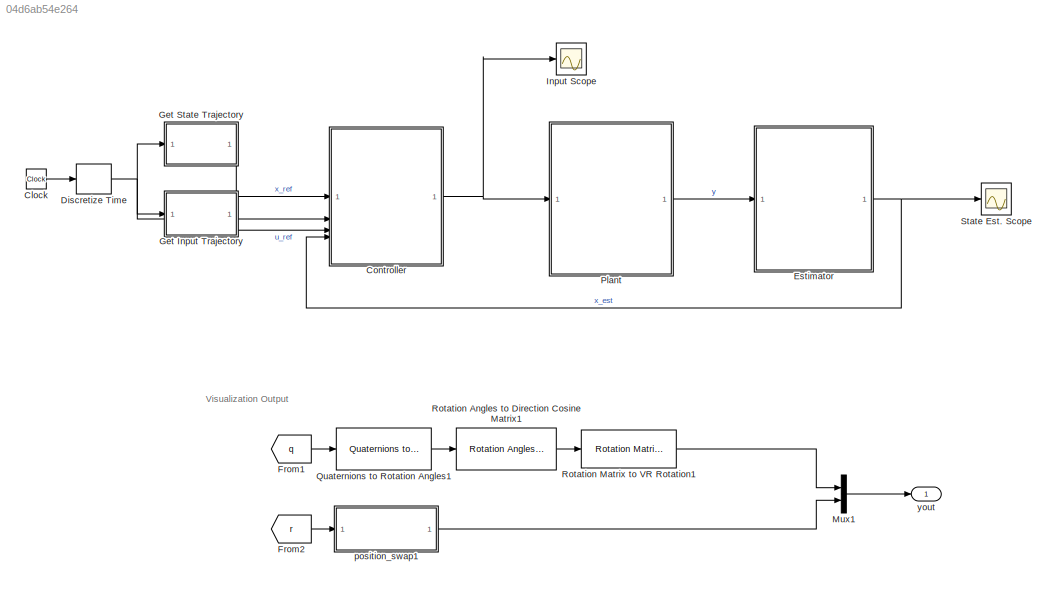
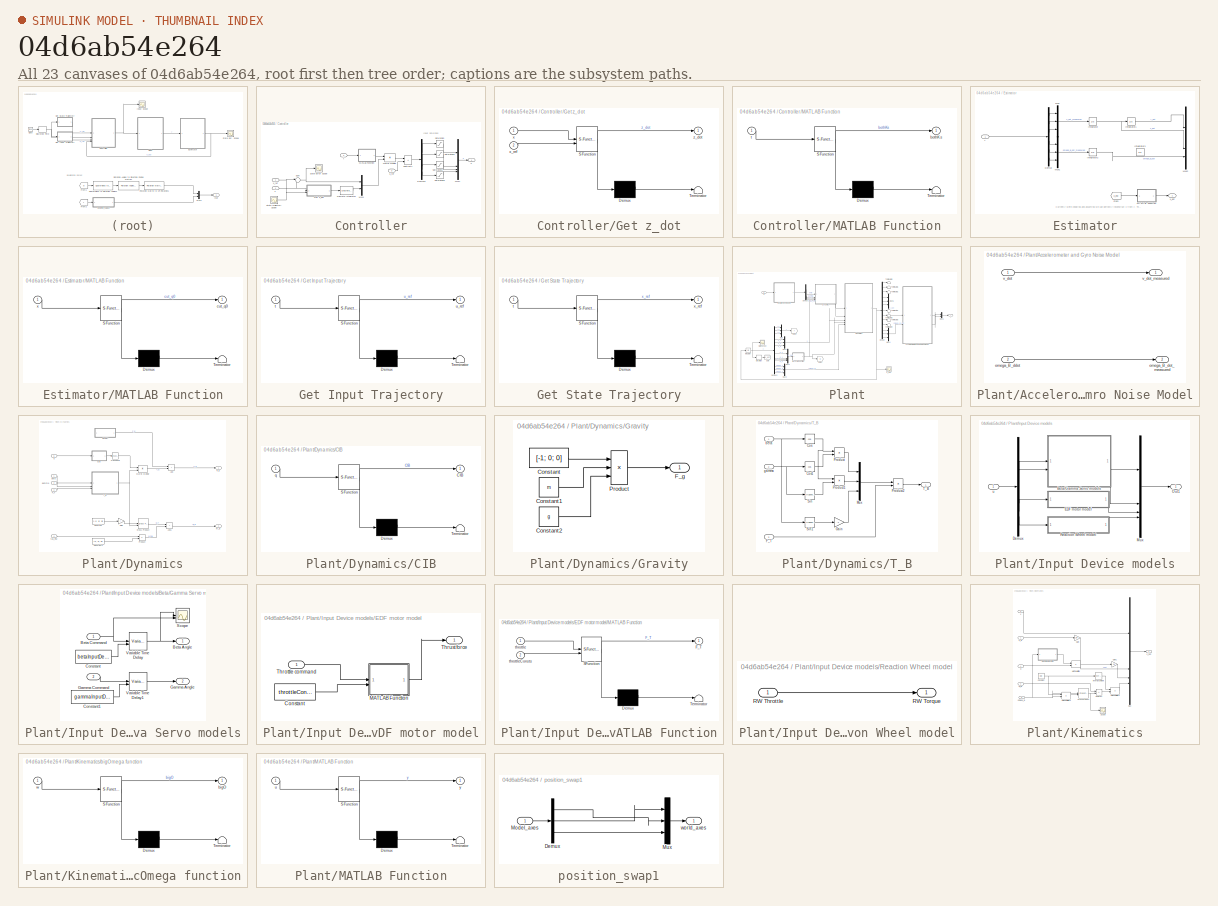
[diagram: thumbnail index - all 23 canvases of the model, root first then tree order]
MODEL slx_04d6ab54e264
KIND model
CONFIG AbsTol = 1e-9
CONFIG EnableMultiTasking = on
CONFIG FixedStep = 1e-4
CONFIG MaxStep = auto
CONFIG MinStep = auto
CONFIG RelTol = 1e-9
CONFIG SampleTimeConstraint = Unconstrained
CONFIG SolverName = VariableStepAuto
CONFIG StartTime = startTime
CONFIG StopTime = stopTime
WORKSPACE source: mxarray member
WORKSPACE Kset = [-2.00916512617e-14 -2.1396164685e-13 1645.65145003 1.10700309911e-13 0.064606154931 -1.15620600709 -2.35613942722e-12 1.21905689036 1.1835423475 0.0960813361903 -1.05646659933e-12 0.256355277786 ... (180 elements, 4x15x3)]
WORKSPACE MOI = [0.25 0.023 -0.0888 0.023 0.5 0.097345 -0.0888 0.097345 0.5]
WORKSPACE betaInputDelay = 0.001
WORKSPACE discretize_interval = 0.0025
WORKSPACE g = 9.81
WORKSPACE gammaInputDelay = 0.001
WORKSPACE inputLimits = [-0.261799387799 -0.261799387799 0 -0.1 0.261799387799 0.261799387799 100 0.1]
WORKSPACE l = 0.5
WORKSPACE m = 5
WORKSPACE q1 = [0.506236006596 0.0473671727454 0.176776695297]
WORKSPACE startTime = 0
WORKSPACE stopTime = 15
WORKSPACE tSegs = [0 7.5 15]
WORKSPACE t_set = [0 0.000750075007501 0.001500150015 0.0022502250225 0.00300030003 0.0037503750375 0.004500450045 0.00525052505251 0.00600060006001 0.00675067506751 0.00750075007501 0.00825082508251 ... (19999 elements, 1x19999)]
WORKSPACE throttleConsts = [71.0072 0.0504 67.9056]
WORKSPACE u_set = [-0.261799387799 0.261799387799 0 -0.1 -0.261799387799 0.261799387799 0 -0.1 -0.261799387799 0.261799387799 0 -0.1 ... (79996 elements, 4x19999)]
WORKSPACE x1 = [10 5 5 0 0 0 0.506236006596 0.0473671727454 0.176776695297 0 0 0]
WORKSPACE x_set = [10 5 5 0 0 0 0.506236006596 0.0473671727454 0.176776695297 0 0 0 ... (239988 elements, 12x19999)]
BLOCK [Clock] Clock
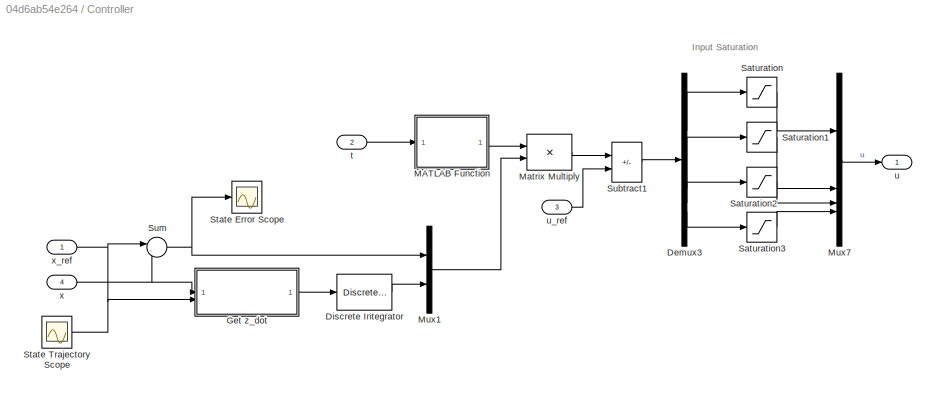
BLOCK [SubSystem] Controller
BLOCK [Demux] Controller/Demux3
BLOCK [DiscreteIntegrator] Controller/Discrete Integrator
  ICPrevOutput = DiscIntNeverNeededParam
  ICPrevScaledInput = DiscIntNeverNeededParam
  InitialConditionSetting = Auto
  IntegratorMethod = Integration: Trapezoidal
  SampleTime = discretize_interval
BLOCK [SubSystem] Controller/Get z_dot
  ErrorFcn = Stateflow.Translate.translate
  LibrarySourceBlock = simulink/User-Defined\nFunctions/MATLAB Function
  PermitHierarchicalResolution = ExplicitOnly
  SFBlockType = MATLAB Function
  TreatAsAtomicUnit = on
BLOCK [Demux] Controller/Get z_dot/ Demux 
  Outputs = 1
BLOCK [S-Function] Controller/Get z_dot/ SFunction 
  EnableBusSupport = off
  FunctionName = sf_sfun
  PortCounts = [2 2]
  SFcnIsStateOwnerBlock = off
  SFunctionDeploymentMode = off
  Tag = Stateflow S-Function 1
BLOCK [Terminator] Controller/Get z_dot/ Terminator 
BLOCK [Inport] Controller/Get z_dot/x
BLOCK [Inport] Controller/Get z_dot/x_ref
  Port = 2
BLOCK [Outport] Controller/Get z_dot/z_dot
BLOCK [SubSystem] Controller/MATLAB Function
  ErrorFcn = Stateflow.Translate.translate
  LibrarySourceBlock = simulink/User-Defined\nFunctions/MATLAB Function
  PermitHierarchicalResolution = ExplicitOnly
  SFBlockType = MATLAB Function
  TreatAsAtomicUnit = on
BLOCK [Demux] Controller/MATLAB Function/ Demux 
  Outputs = 1
BLOCK [S-Function] Controller/MATLAB Function/ SFunction 
  EnableBusSupport = off
  FunctionName = sf_sfun
  Parameters = Kset,tSegs
  PortCounts = [1 2]
  SFcnIsStateOwnerBlock = off
  SFunctionDeploymentMode = off
  Tag = Stateflow S-Function 3
BLOCK [Terminator] Controller/MATLAB Function/ Terminator 
BLOCK [Outport] Controller/MATLAB Function/bothKs
BLOCK [Inport] Controller/MATLAB Function/t
BLOCK [Product] Controller/Matrix Multiply
  Multiplication = Matrix(*)
BLOCK [Mux] Controller/Mux1
  DisplayOption = bar
  Inputs = 2
BLOCK [Mux] Controller/Mux7
  DisplayOption = bar
BLOCK [Saturate] Controller/Saturation
  LinearizeAsGain = off
  LowerLimit = inputLimits(1, 1)
  UpperLimit = inputLimits(1, 2)
BLOCK [Saturate] Controller/Saturation1
  LinearizeAsGain = off
  LowerLimit = inputLimits(2, 1)
  UpperLimit = inputLimits(2, 2)
BLOCK [Saturate] Controller/Saturation2
  LinearizeAsGain = off
  LowerLimit = inputLimits(3, 1)
  UpperLimit = inputLimits(3, 2)
  ZeroCross = off
BLOCK [Saturate] Controller/Saturation3
  LinearizeAsGain = off
  LowerLimit = inputLimits(4, 1)
  UpperLimit = inputLimits(4, 2)
BLOCK [Scope] Controller/State Error Scope
  Floating = off
  NumInputPorts = 1
  ScopeSpecificationString = Simulink.scopes.TimeScopeBlockCfg('CurrentConfiguration', extmgr.ConfigurationSet(extmgr.Configuration('Core','General UI',true),extmgr.Configuration('Core','Source UI',true),extmgr.Configuration('Sources','WiredSimulink',true,'DataLoggingVariableName','ScopeData3'),extmgr.Configuration('Visuals','Time Domain',true,'SerializedDisplays',{struct('MinYLimReal','-1.51556','MaxYLimReal','1.6096','YLabe...<+1814ch>
BLOCK [Scope] Controller/State Trajectory Scope
  Floating = off
  NumInputPorts = 1
  ScopeSpecificationString = Simulink.scopes.TimeScopeBlockCfg('CurrentConfiguration', extmgr.ConfigurationSet(extmgr.Configuration('Core','General UI',true),extmgr.Configuration('Core','Source UI',true),extmgr.Configuration('Sources','WiredSimulink',true,'DataLoggingVariableName','ScopeData2'),extmgr.Configuration('Visuals','Time Domain',true,'SerializedDisplays',{struct('MinYLimReal','-5.28694','MaxYLimReal','17.2541','YLab...<+1432ch>
BLOCK [Sum] Controller/Subtract1
  IconShape = rectangular
  Inputs = -+
BLOCK [Sum] Controller/Sum
  Inputs = |-+
BLOCK [Inport] Controller/t
  IconDisplay = Signal name
  Port = 2
BLOCK [Outport] Controller/u
BLOCK [Inport] Controller/u_ref
  Port = 3
BLOCK [Inport] Controller/x
  Port = 4
BLOCK [Inport] Controller/x_ref
BLOCK [ZeroOrderHold] Discretize Time 
  SampleTime = discretize_interval
BLOCK [SubSystem] Estimator
BLOCK [Demux] Estimator/Demux
  Commented = on
  Outputs = 6
BLOCK [From] Estimator/From
  GotoTag = x_est
  TagVisibility = global
BLOCK [Integrator] Estimator/Integrator
  Commented = on
  InitialCondition = x1(4:6)
BLOCK [Integrator] Estimator/Integrator1
  Commented = on
  InitialCondition = x1(1:3)
BLOCK [Integrator] Estimator/Integrator2
  Commented = on
  InitialCondition = x1(4:6)
BLOCK [Integrator] Estimator/Integrator3
  Commented = on
  InitialCondition = x1(1:3)
BLOCK [SubSystem] Estimator/MATLAB Function
  ErrorFcn = Stateflow.Translate.translate
  PermitHierarchicalResolution = ExplicitOnly
  SFBlockType = MATLAB Function
  TreatAsAtomicUnit = on
BLOCK [Demux] Estimator/MATLAB Function/ Demux 
  Outputs = 1
BLOCK [S-Function] Estimator/MATLAB Function/ SFunction 
  EnableBusSupport = off
  FunctionName = sf_sfun
  PortCounts = [1 2]
  SFcnIsStateOwnerBlock = off
  SFunctionDeploymentMode = off
  Tag = Stateflow S-Function 5
BLOCK [Terminator] Estimator/MATLAB Function/ Terminator 
BLOCK [Outport] Estimator/MATLAB Function/cut_q0
BLOCK [Inport] Estimator/MATLAB Function/x
BLOCK [Mux] Estimator/Mux
  Commented = on
  DisplayOption = bar
  Inputs = 3
BLOCK [Mux] Estimator/Mux1
  Commented = on
  DisplayOption = bar
  Inputs = 3
BLOCK [Mux] Estimator/Mux2
  Commented = on
  DisplayOption = bar
BLOCK [Outport] Estimator/x_est
BLOCK [Inport] Estimator/y
BLOCK [From] From1
  GotoTag = q
  TagVisibility = global
BLOCK [From] From2
  GotoTag = r
  TagVisibility = global
BLOCK [SubSystem] Get Input Trajectory
  ErrorFcn = Stateflow.Translate.translate
  LibrarySourceBlock = simulink/User-Defined\nFunctions/MATLAB Function
  PermitHierarchicalResolution = ExplicitOnly
  SFBlockType = MATLAB Function
  TreatAsAtomicUnit = on
BLOCK [Demux] Get Input Trajectory/ Demux 
  Outputs = 1
BLOCK [S-Function] Get Input Trajectory/ SFunction 
  EnableBusSupport = off
  FunctionName = sf_sfun
  Parameters = t_set,u_set
  PortCounts = [1 2]
  SFcnIsStateOwnerBlock = off
  SFunctionDeploymentMode = off
  Tag = Stateflow S-Function 6
BLOCK [Terminator] Get Input Trajectory/ Terminator 
BLOCK [Inport] Get Input Trajectory/t
BLOCK [Outport] Get Input Trajectory/u_ref
BLOCK [SubSystem] Get State Trajectory
  ErrorFcn = Stateflow.Translate.translate
  LibrarySourceBlock = simulink/User-Defined\nFunctions/MATLAB Function
  NameLocation = top
  PermitHierarchicalResolution = ExplicitOnly
  SFBlockType = MATLAB Function
  TreatAsAtomicUnit = on
BLOCK [Demux] Get State Trajectory/ Demux 
  Outputs = 1
BLOCK [S-Function] Get State Trajectory/ SFunction 
  EnableBusSupport = off
  FunctionName = sf_sfun
  Parameters = t_set,x_set
  PortCounts = [1 2]
  SFcnIsStateOwnerBlock = off
  SFunctionDeploymentMode = off
  Tag = Stateflow S-Function 2
BLOCK [Terminator] Get State Trajectory/ Terminator 
BLOCK [Inport] Get State Trajectory/t
BLOCK [Outport] Get State Trajectory/x_ref
BLOCK [Scope] Input Scope
  Floating = off
  NumInputPorts = 1
  ScopeSpecificationString = Simulink.scopes.TimeScopeBlockCfg('CurrentConfiguration', extmgr.ConfigurationSet(extmgr.Configuration('Core','General UI',true),extmgr.Configuration('Core','Source UI',true),extmgr.Configuration('Sources','WiredSimulink',true,'DataLoggingVariableName','ScopeData1'),extmgr.Configuration('Visuals','Time Domain',true,'SerializedDisplays',{struct('MinYLimReal','-12.79452','MaxYLimReal','112.53272','Y...<+1646ch>
BLOCK [Mux] Mux1
  DisplayOption = bar
  Inputs = 2
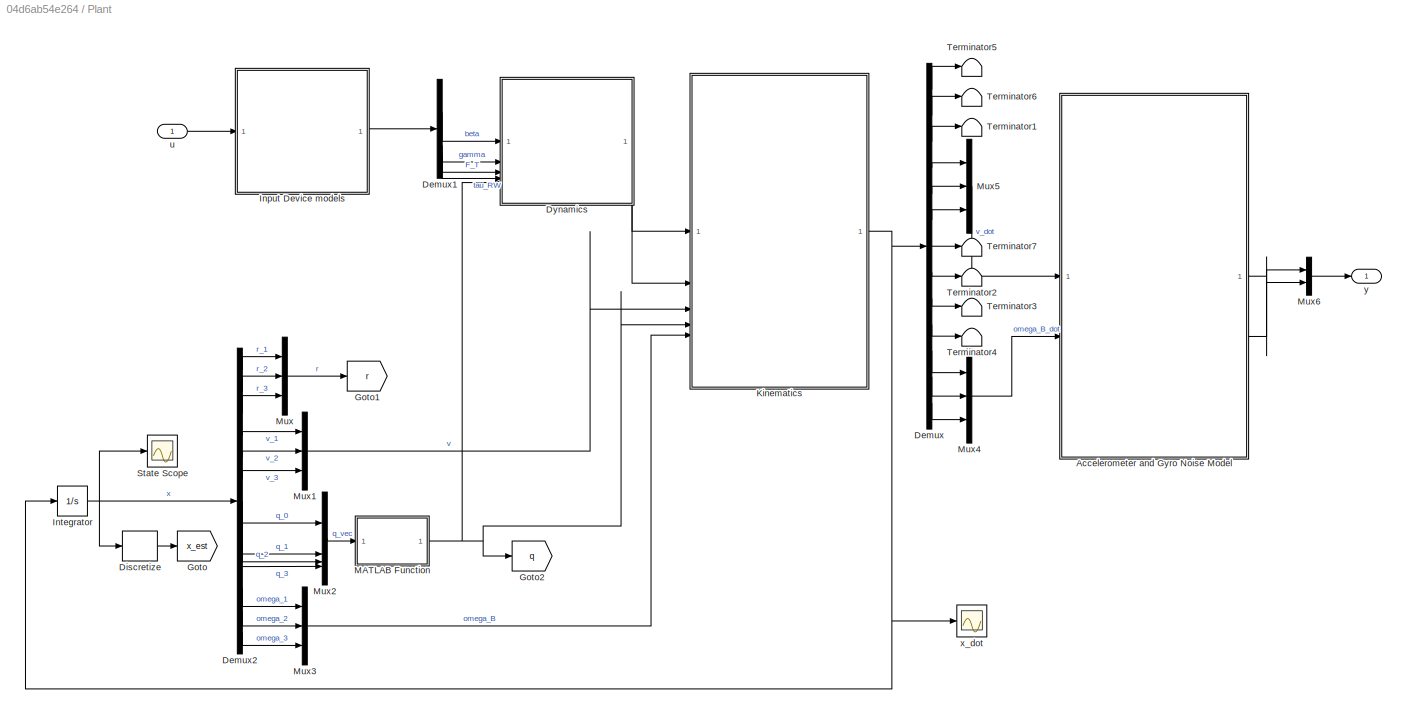
BLOCK [SubSystem] Plant
BLOCK [SubSystem] Plant/Accelerometer and Gyro Noise Model
BLOCK [Inport] Plant/Accelerometer and Gyro Noise Model/omega_B_ddot
  Port = 2
BLOCK [Outport] Plant/Accelerometer and Gyro Noise Model/omega_B_dot_measured
  Port = 2
BLOCK [Inport] Plant/Accelerometer and Gyro Noise Model/v_dot
BLOCK [Outport] Plant/Accelerometer and Gyro Noise Model/v_dot_measured
BLOCK [Demux] Plant/Demux
  Outputs = 13
BLOCK [Demux] Plant/Demux1
BLOCK [Demux] Plant/Demux2
  Outputs = 13
BLOCK [ZeroOrderHold] Plant/Discretize
  SampleTime = -1
BLOCK [SubSystem] Plant/Dynamics
BLOCK [Sum] Plant/Dynamics/Add
  IconShape = rectangular
BLOCK [Sum] Plant/Dynamics/Add1
  IconShape = rectangular
BLOCK [SubSystem] Plant/Dynamics/CIB
  ErrorFcn = Stateflow.Translate.translate
  LibrarySourceBlock = simulink/User-Defined\nFunctions/MATLAB Function
  PermitHierarchicalResolution = ExplicitOnly
  SFBlockType = MATLAB Function
  TreatAsAtomicUnit = on
BLOCK [Demux] Plant/Dynamics/CIB/ Demux 
  Outputs = 1
BLOCK [S-Function] Plant/Dynamics/CIB/ SFunction 
  EnableBusSupport = off
  FunctionName = sf_sfun
  PortCounts = [1 2]
  SFcnIsStateOwnerBlock = off
  SFunctionDeploymentMode = off
  Tag = Stateflow S-Function 7
BLOCK [Terminator] Plant/Dynamics/CIB/ Terminator 
BLOCK [Outport] Plant/Dynamics/CIB/CIB
BLOCK [Inport] Plant/Dynamics/CIB/q
BLOCK [Constant] Plant/Dynamics/Constant
  Value = [-1; 0; 0]
BLOCK [Constant] Plant/Dynamics/Constant1
  Value = [1; 0; 0]
BLOCK [Reference] Plant/Dynamics/Cross Product  REF=matrix_library/Cross Product
  LibrarySourceBlock = simulink/Matrix\nOperations/Cross Product
  SourceBlock = matrix_library/Cross Product
  SourceType = CrossProduct
BLOCK [Outport] Plant/Dynamics/F_E
BLOCK [Inport] Plant/Dynamics/F_T
  Port = 3
BLOCK [Gain] Plant/Dynamics/Gain
  Gain = l
BLOCK [SubSystem] Plant/Dynamics/Gravity
BLOCK [Constant] Plant/Dynamics/Gravity/Constant
  Value = [-1; 0; 0]
BLOCK [Constant] Plant/Dynamics/Gravity/Constant1
  Value = m
BLOCK [Constant] Plant/Dynamics/Gravity/Constant2
  Value = g
BLOCK [Outport] Plant/Dynamics/Gravity/F_g
BLOCK [Product] Plant/Dynamics/Gravity/Product
  Inputs = 3
BLOCK [Outport] Plant/Dynamics/M_B
  Port = 2
BLOCK [Product] Plant/Dynamics/Matrix Multiply
  Multiplication = Matrix(*)
BLOCK [Product] Plant/Dynamics/Product
BLOCK [SubSystem] Plant/Dynamics/T_B
BLOCK [Trigonometry] Plant/Dynamics/T_B/Cos
  Operator = cos
BLOCK [Trigonometry] Plant/Dynamics/T_B/Cos1
  Operator = cos
BLOCK [Inport] Plant/Dynamics/T_B/F_T
  Port = 3
BLOCK [Gain] Plant/Dynamics/T_B/Gain
  Gain = -1
BLOCK [Mux] Plant/Dynamics/T_B/Mux
  DisplayOption = bar
  Inputs = 3
BLOCK [Product] Plant/Dynamics/T_B/Product
BLOCK [Product] Plant/Dynamics/T_B/Product1
BLOCK [Product] Plant/Dynamics/T_B/Product2
BLOCK [Trigonometry] Plant/Dynamics/T_B/Sin
BLOCK [Trigonometry] Plant/Dynamics/T_B/Sin1
BLOCK [Outport] Plant/Dynamics/T_B/T_B
BLOCK [Inport] Plant/Dynamics/T_B/beta
BLOCK [Inport] Plant/Dynamics/T_B/gamma
  Port = 2
BLOCK [Math] Plant/Dynamics/Transpose
  Operator = transpose
BLOCK [Inport] Plant/Dynamics/beta
BLOCK [Inport] Plant/Dynamics/gamma
  Port = 2
BLOCK [Inport] Plant/Dynamics/q
  Port = 5
BLOCK [Inport] Plant/Dynamics/tau_RW
  Port = 4
BLOCK [Goto] Plant/Goto
  GotoTag = x_est
  TagVisibility = global
BLOCK [Goto] Plant/Goto1
  GotoTag = r
  TagVisibility = global
BLOCK [Goto] Plant/Goto2
  GotoTag = q
  TagVisibility = global
BLOCK [SubSystem] Plant/Input Device models
BLOCK [SubSystem] Plant/Input Device models/Beta//Gamma Servo models
  Commented = through
BLOCK [Outport] Plant/Input Device models/Beta//Gamma Servo models/Beta Angle
BLOCK [Inport] Plant/Input Device models/Beta//Gamma Servo models/Beta Command
BLOCK [Constant] Plant/Input Device models/Beta//Gamma Servo models/Constant
  Value = betaInputDelay
BLOCK [Constant] Plant/Input Device models/Beta//Gamma Servo models/Constant1
  Value = gammaInputDelay
BLOCK [Outport] Plant/Input Device models/Beta//Gamma Servo models/Gamma Angle
  Port = 2
BLOCK [Inport] Plant/Input Device models/Beta//Gamma Servo models/Gamma Command
  Port = 2
BLOCK [Scope] Plant/Input Device models/Beta//Gamma Servo models/Scope
  Floating = off
  NumInputPorts = 2
  ScopeSpecificationString = Simulink.scopes.TimeScopeBlockCfg('CurrentConfiguration', extmgr.ConfigurationSet(extmgr.Configuration('Core','General UI',true),extmgr.Configuration('Core','Source UI',true),extmgr.Configuration('Sources','WiredSimulink',true,'DataLoggingVariableName','ScopeData4'),extmgr.Configuration('Visuals','Time Domain',true,'SerializedDisplays',{struct('MinYLimReal','-0.07593','MaxYLimReal','0.22168','YLab...<+1413ch>
BLOCK [VariableTransportDelay] Plant/Input Device models/Beta//Gamma Servo models/Variable Time Delay
  MaximumDelay = 10
BLOCK [VariableTransportDelay] Plant/Input Device models/Beta//Gamma Servo models/Variable Time Delay1
  MaximumDelay = 10
BLOCK [Demux] Plant/Input Device models/Demux
BLOCK [SubSystem] Plant/Input Device models/EDF motor model
BLOCK [Constant] Plant/Input Device models/EDF motor model/Constant
  Value = throttleConsts
BLOCK [SubSystem] Plant/Input Device models/EDF motor model/MATLAB Function
  ErrorFcn = Stateflow.Translate.translate
  LibrarySourceBlock = simulink/User-Defined\nFunctions/MATLAB Function
  PermitHierarchicalResolution = ExplicitOnly
  SFBlockType = MATLAB Function
  TreatAsAtomicUnit = on
BLOCK [Demux] Plant/Input Device models/EDF motor model/MATLAB Function/ Demux 
  Outputs = 1
BLOCK [S-Function] Plant/Input Device models/EDF motor model/MATLAB Function/ SFunction 
  EnableBusSupport = off
  FunctionName = sf_sfun
  PortCounts = [2 2]
  SFcnIsStateOwnerBlock = off
  SFunctionDeploymentMode = off
  Tag = Stateflow S-Function 4
BLOCK [Terminator] Plant/Input Device models/EDF motor model/MATLAB Function/ Terminator 
BLOCK [Outport] Plant/Input Device models/EDF motor model/MATLAB Function/F_T
BLOCK [Inport] Plant/Input Device models/EDF motor model/MATLAB Function/throttle
BLOCK [Inport] Plant/Input Device models/EDF motor model/MATLAB Function/throttleConsts
  Port = 2
BLOCK [Inport] Plant/Input Device models/EDF motor model/Throttle command
BLOCK [Outport] Plant/Input Device models/EDF motor model/Thrust force
BLOCK [Mux] Plant/Input Device models/Mux
  DisplayOption = bar
BLOCK [Outport] Plant/Input Device models/Out1
BLOCK [SubSystem] Plant/Input Device models/Reaction Wheel model
  Commented = through
BLOCK [Inport] Plant/Input Device models/Reaction Wheel model/RW Throttle
BLOCK [Outport] Plant/Input Device models/Reaction Wheel model/RW Torque
BLOCK [Inport] Plant/Input Device models/u
BLOCK [Integrator] Plant/Integrator
  InitialCondition = [x1(1:6); sqrt(1-q1(1)^2-q1(2)^2-q1(3)^2); x1(7:end)]
BLOCK [SubSystem] Plant/Kinematics
BLOCK [Constant] Plant/Kinematics/Constant
  Value = MOI
BLOCK [Reference] Plant/Kinematics/Cross Product  REF=matrix_library/Cross Product
  LibrarySourceBlock = simulink/Matrix\nOperations/Cross Product
  SourceBlock = matrix_library/Cross Product
  SourceType = CrossProduct
BLOCK [Inport] Plant/Kinematics/F_E
BLOCK [Gain] Plant/Kinematics/Gain
  Gain = 1/m
BLOCK [Gain] Plant/Kinematics/Gain1
  Gain = 0.5
BLOCK [Reference] Plant/Kinematics/Invert 3x3 Matrix  REF=aerolibutil/Invert 
3x3 Matrix
  SourceBlock = aerolibutil/Invert \n3x3 Matrix
  SourceType = Invert 3x3 Matrix
BLOCK [Inport] Plant/Kinematics/M_B
  Port = 2
BLOCK [Product] Plant/Kinematics/Matrix Multiply
  Multiplication = Matrix(*)
BLOCK [Product] Plant/Kinematics/Matrix Multiply1
  Multiplication = Matrix(*)
BLOCK [Product] Plant/Kinematics/Matrix Multiply2
  Multiplication = Matrix(*)
BLOCK [Mux] Plant/Kinematics/Mux
  DisplayOption = bar
BLOCK [Scope] Plant/Kinematics/Scope
  Floating = off
  NumInputPorts = 1
  ScopeSpecificationString = Simulink.scopes.TimeScopeBlockCfg('CurrentConfiguration', extmgr.ConfigurationSet(extmgr.Configuration('Core','General UI',true),extmgr.Configuration('Core','Source UI',true),extmgr.Configuration('Sources','WiredSimulink',true,'DataLoggingVariableName','ScopeData1'),extmgr.Configuration('Visuals','Time Domain',true,'SerializedDisplays',{struct('MinYLimReal','-0.69942','MaxYLimReal','0.8203','YLabe...<+1481ch>
BLOCK [Sum] Plant/Kinematics/Subtract
  IconShape = rectangular
  Inputs = +-
BLOCK [SubSystem] Plant/Kinematics/bigOmega function
  ErrorFcn = Stateflow.Translate.translate
  LibrarySourceBlock = simulink/User-Defined\nFunctions/MATLAB Function
  PermitHierarchicalResolution = ExplicitOnly
  SFBlockType = MATLAB Function
  TreatAsAtomicUnit = on
BLOCK [Demux] Plant/Kinematics/bigOmega function/ Demux 
  Outputs = 1
BLOCK [S-Function] Plant/Kinematics/bigOmega function/ SFunction 
  EnableBusSupport = off
  FunctionName = sf_sfun
  PortCounts = [1 2]
  SFcnIsStateOwnerBlock = off
  SFunctionDeploymentMode = off
  Tag = Stateflow S-Function 13
BLOCK [Terminator] Plant/Kinematics/bigOmega function/ Terminator 
BLOCK [Outport] Plant/Kinematics/bigOmega function/bigO
BLOCK [Inport] Plant/Kinematics/bigOmega function/w
BLOCK [Inport] Plant/Kinematics/omega_B
  Port = 5
BLOCK [Inport] Plant/Kinematics/q
  Port = 4
BLOCK [Inport] Plant/Kinematics/v
  Port = 3
BLOCK [Outport] Plant/Kinematics/x_dot
BLOCK [SubSystem] Plant/MATLAB Function
  ErrorFcn = Stateflow.Translate.translate
  PermitHierarchicalResolution = ExplicitOnly
  SFBlockType = MATLAB Function
  TreatAsAtomicUnit = on
BLOCK [Demux] Plant/MATLAB Function/ Demux 
  Outputs = 1
BLOCK [S-Function] Plant/MATLAB Function/ SFunction 
  EnableBusSupport = off
  FunctionName = sf_sfun
  PortCounts = [1 2]
  SFcnIsStateOwnerBlock = off
  SFunctionDeploymentMode = off
  Tag = Stateflow S-Function 8
BLOCK [Terminator] Plant/MATLAB Function/ Terminator 
BLOCK [Inport] Plant/MATLAB Function/u
BLOCK [Outport] Plant/MATLAB Function/y
BLOCK [Mux] Plant/Mux
  DisplayOption = bar
  Inputs = 3
BLOCK [Mux] Plant/Mux1
  DisplayOption = bar
  Inputs = 3
BLOCK [Mux] Plant/Mux2
  DisplayOption = bar
BLOCK [Mux] Plant/Mux3
  DisplayOption = bar
  Inputs = 3
BLOCK [Mux] Plant/Mux4
  DisplayOption = bar
  Inputs = 3
BLOCK [Mux] Plant/Mux5
  DisplayOption = bar
  Inputs = 3
BLOCK [Mux] Plant/Mux6
  DisplayOption = bar
  Inputs = 2
BLOCK [Scope] Plant/State Scope
  Floating = off
  NumInputPorts = 1
  ScopeSpecificationString = Simulink.scopes.TimeScopeBlockCfg('CurrentConfiguration', extmgr.ConfigurationSet(extmgr.Configuration('Core','General UI',true),extmgr.Configuration('Core','Source UI',true),extmgr.Configuration('Sources','WiredSimulink',true,'DataLoggingVariableName','ScopeData1'),extmgr.Configuration('Visuals','Time Domain',true,'SerializedDisplays',{struct('MinYLimReal','-1.70461','MaxYLimReal','5.07131','YLab...<+1545ch>
BLOCK [Terminator] Plant/Terminator1
BLOCK [Terminator] Plant/Terminator2
BLOCK [Terminator] Plant/Terminator3
BLOCK [Terminator] Plant/Terminator4
BLOCK [Terminator] Plant/Terminator5
BLOCK [Terminator] Plant/Terminator6
BLOCK [Terminator] Plant/Terminator7
BLOCK [Inport] Plant/u
BLOCK [Scope] Plant/x_dot
  Floating = off
  NumInputPorts = 1
  ScopeSpecificationString = Simulink.scopes.TimeScopeBlockCfg('CurrentConfiguration', extmgr.ConfigurationSet(extmgr.Configuration('Core','General UI',true),extmgr.Configuration('Core','Source UI',true),extmgr.Configuration('Sources','WiredSimulink',true,'DataLoggingVariableName','ScopeData4'),extmgr.Configuration('Visuals','Time Domain',true,'SerializedDisplays',{struct('MinYLimReal','-246.5273','MaxYLimReal','546.50659','Y...<+1832ch>
BLOCK [Outport] Plant/y
BLOCK [Reference] Quaternions to Rotation Angles1  REF=sharedtransform/Quaternions to Rotation Angles
  AttributesFormatString = Rotation Order: %<rotationOrder>
  LibrarySourceBlock = aerolibtransform2/Quaternions to Rotation Angles
  SourceBlock = sharedtransform/Quaternions to Rotation Angles
  SourceType = Quat2Ang
BLOCK [Reference] Rotation Angles to Direction Cosine Matrix1  REF=sharedtransform/Rotation Angles to
Direction Cosine Matrix
  AttributesFormatString = Rotation Order: %<rotationOrder>
  LibrarySourceBlock = aerolibtransform2/Rotation Angles to\nDirection Cosine Matrix
  SourceBlock = sharedtransform/Rotation Angles to\nDirection Cosine Matrix
  SourceType = Ang2DCM
BLOCK [Reference] Rotation Matrix to VR Rotation1  REF=vrlib/Utilities/Rotation Matrix
to VR Rotation
  SourceBlock = vrlib/Utilities/Rotation Matrix\nto VR Rotation
  SourceType = Rotation Matrix to VR Rotation
BLOCK [Scope] State Est. Scope
  Floating = off
  NumInputPorts = 1
  ScopeSpecificationString = Simulink.scopes.TimeScopeBlockCfg('CurrentConfiguration', extmgr.ConfigurationSet(extmgr.Configuration('Core','General UI',true),extmgr.Configuration('Core','Source UI',true),extmgr.Configuration('Sources','WiredSimulink',true,'DataLoggingVariableName','ScopeData1'),extmgr.Configuration('Visuals','Time Domain',true,'SerializedDisplays',{struct('MinYLimReal','-4.48775','MaxYLimReal','11.60975','YLa...<+1820ch>
BLOCK [SubSystem] position_swap1
BLOCK [Demux] position_swap1/Demux
  Outputs = 3
BLOCK [Inport] position_swap1/Model_axes
BLOCK [Mux] position_swap1/Mux
  DisplayOption = bar
  Inputs = 3
BLOCK [Outport] position_swap1/world_axes
BLOCK [Outport] yout
ANNOTATION (root): Visualization Output
ANNOTATION Controller: Input Saturation
ANNOTATION Estimator: Currently we're cheating and assuming we can perfectly reconstruct x from y. This is a bit of a hack for now.
LINE Clock:1 -> Discretize Time :1
LINE Controller/Demux3:1 -> Controller/Saturation:1
LINE Controller/Demux3:2 -> Controller/Saturation1:1
LINE Controller/Demux3:3 -> Controller/Saturation2:1
LINE Controller/Demux3:4 -> Controller/Saturation3:1
LINE Controller/Discrete Integrator:1 -> Controller/Mux1:2
LINE Controller/Get z_dot:1 -> Controller/Discrete Integrator:1
LINE Controller/MATLAB Function:1 -> Controller/Matrix Multiply:1
LINE Controller/Matrix Multiply:1 -> Controller/Subtract1:1
LINE Controller/Mux1:1 -> Controller/Matrix Multiply:2
LINE Controller/Mux7:1 -> Controller/u:1
LINE Controller/Saturation1:1 -> Controller/Mux7:2
LINE Controller/Saturation2:1 -> Controller/Mux7:3
LINE Controller/Saturation3:1 -> Controller/Mux7:4
LINE Controller/Saturation:1 -> Controller/Mux7:1
LINE Controller/Subtract1:1 -> Controller/Demux3:1
NET Controller/Sum:1 -> Controller/Mux1:1, Controller/State Error Scope:1
LINE Controller/t:1 -> Controller/MATLAB Function:1
LINE Controller/u_ref:1 -> Controller/Subtract1:2
NET Controller/x:1 -> Controller/Get z_dot:1, Controller/Sum:2
NET Controller/x_ref:1 -> Controller/Get z_dot:2, Controller/State Trajectory Scope:1, Controller/Sum:1
NET Controller:1 -> Input Scope:1, Plant:1
NET Discretize Time :1 -> Controller:2, Get Input Trajectory:1, Get State Trajectory:1
LINE Estimator/Demux:1 -> Estimator/Mux:1
LINE Estimator/Demux:2 -> Estimator/Mux:2
LINE Estimator/Demux:3 -> Estimator/Mux:3
LINE Estimator/Demux:4 -> Estimator/Mux1:1
LINE Estimator/Demux:5 -> Estimator/Mux1:2
LINE Estimator/Demux:6 -> Estimator/Mux1:3
LINE Estimator/From:1 -> Estimator/MATLAB Function:1
LINE Estimator/Integrator1:1 -> Estimator/Mux2:1
LINE Estimator/Integrator2:1 -> Estimator/Mux2:4
NET Estimator/Integrator:1 -> Estimator/Integrator1:1, Estimator/Mux2:2
LINE Estimator/MATLAB Function:1 -> Estimator/x_est:1
LINE Estimator/Mux1:1 -> Estimator/Integrator2:1
LINE Estimator/Mux:1 -> Estimator/Integrator:1
LINE Estimator/y:1 -> Estimator/Demux:1
NET Estimator:1 -> Controller:4, State Est. Scope:1
LINE From1:1 -> Quaternions to Rotation Angles1:1
LINE From2:1 -> position_swap1:1
LINE Get Input Trajectory:1 -> Controller:3
LINE Get State Trajectory:1 -> Controller:1
LINE Mux1:1 -> yout:1
LINE Plant/Accelerometer and Gyro Noise Model/omega_B_ddot:1 -> Plant/Accelerometer and Gyro Noise Model/omega_B_dot_measured:1
LINE Plant/Accelerometer and Gyro Noise Model/v_dot:1 -> Plant/Accelerometer and Gyro Noise Model/v_dot_measured:1
LINE Plant/Accelerometer and Gyro Noise Model:1 -> Plant/Mux6:1
LINE Plant/Accelerometer and Gyro Noise Model:2 -> Plant/Mux6:2
LINE Plant/Demux1:1 -> Plant/Dynamics:1
LINE Plant/Demux1:2 -> Plant/Dynamics:2
LINE Plant/Demux1:3 -> Plant/Dynamics:3
LINE Plant/Demux1:4 -> Plant/Dynamics:4
LINE Plant/Demux2:1 -> Plant/Mux:1
LINE Plant/Demux2:10 -> Plant/Mux2:4
LINE Plant/Demux2:11 -> Plant/Mux3:1
LINE Plant/Demux2:12 -> Plant/Mux3:2
LINE Plant/Demux2:13 -> Plant/Mux3:3
LINE Plant/Demux2:2 -> Plant/Mux:2
LINE Plant/Demux2:3 -> Plant/Mux:3
LINE Plant/Demux2:4 -> Plant/Mux1:1
LINE Plant/Demux2:5 -> Plant/Mux1:2
LINE Plant/Demux2:6 -> Plant/Mux1:3
LINE Plant/Demux2:7 -> Plant/Mux2:1
LINE Plant/Demux2:8 -> Plant/Mux2:2
LINE Plant/Demux2:9 -> Plant/Mux2:3
LINE Plant/Demux:1 -> Plant/Terminator5:1
LINE Plant/Demux:10 -> Plant/Terminator4:1
LINE Plant/Demux:11 -> Plant/Mux4:1
LINE Plant/Demux:12 -> Plant/Mux4:2
LINE Plant/Demux:13 -> Plant/Mux4:3
LINE Plant/Demux:2 -> Plant/Terminator6:1
LINE Plant/Demux:3 -> Plant/Terminator1:1
LINE Plant/Demux:4 -> Plant/Mux5:1
LINE Plant/Demux:5 -> Plant/Mux5:2
LINE Plant/Demux:6 -> Plant/Mux5:3
LINE Plant/Demux:7 -> Plant/Terminator7:1
LINE Plant/Demux:8 -> Plant/Terminator2:1
LINE Plant/Demux:9 -> Plant/Terminator3:1
LINE Plant/Discretize:1 -> Plant/Goto:1
LINE Plant/Dynamics/Add1:1 -> Plant/Dynamics/M_B:1
LINE Plant/Dynamics/Add:1 -> Plant/Dynamics/F_E:1
LINE Plant/Dynamics/CIB:1 -> Plant/Dynamics/Transpose:1
LINE Plant/Dynamics/Constant1:1 -> Plant/Dynamics/Product:2
LINE Plant/Dynamics/Constant:1 -> Plant/Dynamics/Gain:1
LINE Plant/Dynamics/Cross Product:1 -> Plant/Dynamics/Add1:1
LINE Plant/Dynamics/F_T:1 -> Plant/Dynamics/T_B:3
LINE Plant/Dynamics/Gain:1 -> Plant/Dynamics/Cross Product:1
LINE Plant/Dynamics/Gravity/Constant1:1 -> Plant/Dynamics/Gravity/Product:2
LINE Plant/Dynamics/Gravity/Constant2:1 -> Plant/Dynamics/Gravity/Product:3
LINE Plant/Dynamics/Gravity/Constant:1 -> Plant/Dynamics/Gravity/Product:1
LINE Plant/Dynamics/Gravity/Product:1 -> Plant/Dynamics/Gravity/F_g:1
LINE Plant/Dynamics/Gravity:1 -> Plant/Dynamics/Add:1
LINE Plant/Dynamics/Matrix Multiply:1 -> Plant/Dynamics/Add:2
LINE Plant/Dynamics/Product:1 -> Plant/Dynamics/Add1:2
LINE Plant/Dynamics/T_B/Cos1:1 -> Plant/Dynamics/T_B/Product:2
NET Plant/Dynamics/T_B/Cos:1 -> Plant/Dynamics/T_B/Product1:1, Plant/Dynamics/T_B/Product:1
LINE Plant/Dynamics/T_B/F_T:1 -> Plant/Dynamics/T_B/Product2:2
LINE Plant/Dynamics/T_B/Gain:1 -> Plant/Dynamics/T_B/Mux:3
LINE Plant/Dynamics/T_B/Mux:1 -> Plant/Dynamics/T_B/Product2:1
LINE Plant/Dynamics/T_B/Product1:1 -> Plant/Dynamics/T_B/Mux:2
LINE Plant/Dynamics/T_B/Product2:1 -> Plant/Dynamics/T_B/T_B:1
LINE Plant/Dynamics/T_B/Product:1 -> Plant/Dynamics/T_B/Mux:1
LINE Plant/Dynamics/T_B/Sin1:1 -> Plant/Dynamics/T_B/Gain:1
LINE Plant/Dynamics/T_B/Sin:1 -> Plant/Dynamics/T_B/Product1:2
NET Plant/Dynamics/T_B/beta:1 -> Plant/Dynamics/T_B/Cos:1, Plant/Dynamics/T_B/Sin1:1
NET Plant/Dynamics/T_B/gamma:1 -> Plant/Dynamics/T_B/Cos1:1, Plant/Dynamics/T_B/Sin:1
NET Plant/Dynamics/T_B:1 -> Plant/Dynamics/Cross Product:2, Plant/Dynamics/Matrix Multiply:2
LINE Plant/Dynamics/Transpose:1 -> Plant/Dynamics/Matrix Multiply:1
LINE Plant/Dynamics/beta:1 -> Plant/Dynamics/T_B:1
LINE Plant/Dynamics/gamma:1 -> Plant/Dynamics/T_B:2
LINE Plant/Dynamics/q:1 -> Plant/Dynamics/CIB:1
LINE Plant/Dynamics/tau_RW:1 -> Plant/Dynamics/Product:1
LINE Plant/Dynamics:1 -> Plant/Kinematics:1
LINE Plant/Dynamics:2 -> Plant/Kinematics:2
NET Plant/Input Device models/Beta//Gamma Servo models/Beta Command:1 -> Plant/Input Device models/Beta//Gamma Servo models/Scope:2, Plant/Input Device models/Beta//Gamma Servo models/Variable Time Delay:1
LINE Plant/Input Device models/Beta//Gamma Servo models/Constant1:1 -> Plant/Input Device models/Beta//Gamma Servo models/Variable Time Delay1:2
LINE Plant/Input Device models/Beta//Gamma Servo models/Constant:1 -> Plant/Input Device models/Beta//Gamma Servo models/Variable Time Delay:2
LINE Plant/Input Device models/Beta//Gamma Servo models/Gamma Command:1 -> Plant/Input Device models/Beta//Gamma Servo models/Variable Time Delay1:1
LINE Plant/Input Device models/Beta//Gamma Servo models/Variable Time Delay1:1 -> Plant/Input Device models/Beta//Gamma Servo models/Gamma Angle:1
NET Plant/Input Device models/Beta//Gamma Servo models/Variable Time Delay:1 -> Plant/Input Device models/Beta//Gamma Servo models/Beta Angle:1, Plant/Input Device models/Beta//Gamma Servo models/Scope:1
LINE Plant/Input Device models/Beta//Gamma Servo models:1 -> Plant/Input Device models/Mux:1
LINE Plant/Input Device models/Beta//Gamma Servo models:2 -> Plant/Input Device models/Mux:2
LINE Plant/Input Device models/Demux:1 -> Plant/Input Device models/Beta//Gamma Servo models:1
LINE Plant/Input Device models/Demux:2 -> Plant/Input Device models/Beta//Gamma Servo models:2
LINE Plant/Input Device models/Demux:3 -> Plant/Input Device models/EDF motor model:1
LINE Plant/Input Device models/Demux:4 -> Plant/Input Device models/Reaction Wheel model:1
LINE Plant/Input Device models/EDF motor model/Constant:1 -> Plant/Input Device models/EDF motor model/MATLAB Function:2
LINE Plant/Input Device models/EDF motor model/MATLAB Function:1 -> Plant/Input Device models/EDF motor model/Thrust force:1
LINE Plant/Input Device models/EDF motor model/Throttle command:1 -> Plant/Input Device models/EDF motor model/MATLAB Function:1
LINE Plant/Input Device models/EDF motor model:1 -> Plant/Input Device models/Mux:3
LINE Plant/Input Device models/Mux:1 -> Plant/Input Device models/Out1:1
LINE Plant/Input Device models/Reaction Wheel model/RW Throttle:1 -> Plant/Input Device models/Reaction Wheel model/RW Torque:1
LINE Plant/Input Device models/Reaction Wheel model:1 -> Plant/Input Device models/Mux:4
LINE Plant/Input Device models/u:1 -> Plant/Input Device models/Demux:1
LINE Plant/Input Device models:1 -> Plant/Demux1:1
NET Plant/Integrator:1 -> Plant/Demux2:1, Plant/Discretize:1, Plant/State Scope:1
NET Plant/Kinematics/Constant:1 -> Plant/Kinematics/Invert 3x3 Matrix:1, Plant/Kinematics/Matrix Multiply2:1
NET Plant/Kinematics/Cross Product:1 -> Plant/Kinematics/Scope:1, Plant/Kinematics/Subtract:2
LINE Plant/Kinematics/F_E:1 -> Plant/Kinematics/Gain:1
LINE Plant/Kinematics/Gain1:1 -> Plant/Kinematics/Mux:3
LINE Plant/Kinematics/Gain:1 -> Plant/Kinematics/Mux:2
LINE Plant/Kinematics/Invert 3x3 Matrix:1 -> Plant/Kinematics/Matrix Multiply1:1
LINE Plant/Kinematics/M_B:1 -> Plant/Kinematics/Subtract:1
LINE Plant/Kinematics/Matrix Multiply1:1 -> Plant/Kinematics/Mux:4
LINE Plant/Kinematics/Matrix Multiply2:1 -> Plant/Kinematics/Cross Product:2
LINE Plant/Kinematics/Matrix Multiply:1 -> Plant/Kinematics/Gain1:1
LINE Plant/Kinematics/Mux:1 -> Plant/Kinematics/x_dot:1
LINE Plant/Kinematics/Subtract:1 -> Plant/Kinematics/Matrix Multiply1:2
LINE Plant/Kinematics/bigOmega function:1 -> Plant/Kinematics/Matrix Multiply:1
NET Plant/Kinematics/omega_B:1 -> Plant/Kinematics/Cross Product:1, Plant/Kinematics/Matrix Multiply2:2, Plant/Kinematics/bigOmega function:1
LINE Plant/Kinematics/q:1 -> Plant/Kinematics/Matrix Multiply:2
LINE Plant/Kinematics/v:1 -> Plant/Kinematics/Mux:1
NET Plant/Kinematics:1 -> Plant/Demux:1, Plant/Integrator:1, Plant/x_dot:1
NET Plant/MATLAB Function:1 -> Plant/Dynamics:5, Plant/Goto2:1, Plant/Kinematics:4
LINE Plant/Mux1:1 -> Plant/Kinematics:3
LINE Plant/Mux2:1 -> Plant/MATLAB Function:1
LINE Plant/Mux3:1 -> Plant/Kinematics:5
LINE Plant/Mux4:1 -> Plant/Accelerometer and Gyro Noise Model:2
LINE Plant/Mux5:1 -> Plant/Accelerometer and Gyro Noise Model:1
LINE Plant/Mux6:1 -> Plant/y:1
LINE Plant/Mux:1 -> Plant/Goto1:1
LINE Plant/u:1 -> Plant/Input Device models:1
LINE Plant:1 -> Estimator:1
LINE Quaternions to Rotation Angles1:1 -> Rotation Angles to Direction Cosine Matrix1:1
LINE Rotation Angles to Direction Cosine Matrix1:1 -> Rotation Matrix to VR Rotation1:1
LINE Rotation Matrix to VR Rotation1:1 -> Mux1:1
LINE position_swap1/Demux:1 -> position_swap1/Mux:2
LINE position_swap1/Demux:2 -> position_swap1/Mux:1
LINE position_swap1/Demux:3 -> position_swap1/Mux:3
LINE position_swap1/Model_axes:1 -> position_swap1/Demux:1
LINE position_swap1/Mux:1 -> position_swap1/world_axes:1
LINE position_swap1:1 -> Mux1:2
note: NET lines group one-source signal fan-out (src -> all destinations, sorted); 1:1 wires keep LINE
CHART Controller/Get z_dot states=1 transitions=1
  STATE_LABEL 'eML_blk_kernel()'
  STATE_LABEL 'SCRIPT:\nfunction z_dot = getZDot(x, x_ref)\nC = [eye(3), zeros(3, length(x) - 3)];\nz_dot = C*x - x_ref(1:3);\n'
CHART Get State Trajectory states=1 transitions=1
  STATE_LABEL 'eML_blk_kernel()'
  STATE_LABEL 'SCRIPT:\nfunction x_ref = get_trajectory(t, x_set, t_set)\n    x_ref = zeros(size(x_set, 1), 1);\n    for i = 1:size(x_ref, 1)\n        x_ref(i) = interp1(t_set, x_set(i, :), t);\n    end\nend'
CHART Controller/MATLAB Function states=1 transitions=1
  STATE_LABEL 'eML_blk_kernel()'
  STATE_LABEL 'SCRIPT:\nfunction bothKs = fcn(t, Kset, tSegs)\ncurrentIndex = -1;\nfor i = 1:length(tSegs)\n    if (i ~= 1) && (t <= tSegs(i))\n        currentIndex = i-1;\n        break;\n    end\nend\n\nbothKs = Kset(:, :, currentIndex);'
CHART Plant/Input Device models/EDF motor model/MATLAB Function states=1 transitions=1
  STATE_LABEL 'eML_blk_kernel()'
  STATE_LABEL 'SCRIPT:\n% function F_T = fcn(throttle)\n% F_T = polyval(flip(throttleCoeffs), throttle - 50);\n\nfunction F_T = fcn(throttle, throttleConsts)\nF_T = throttleConsts(1) ./ (1 + exp(-throttleConsts(2)*(throttle-throttleConsts(3))));\n'
CHART Estimator/MATLAB Function states=1 transitions=1
  STATE_LABEL 'eML_blk_kernel()'
  STATE_LABEL 'SCRIPT:\nfunction cut_q0 = fcn(x)\ncut_q0 = x([1:6, 8:end]);\n'
CHART Get Input Trajectory states=1 transitions=1
  STATE_LABEL 'eML_blk_kernel()'
  STATE_LABEL 'SCRIPT:\nfunction u_ref = get_trajectory(t, u_set, t_set)\n    u_ref = zeros(size(u_set, 1), 1);\n    for i = 1:size(u_set, 1)\n        u_ref(i) = interp1(t_set, u_set(i, :), t);\n    end\nend'
CHART Plant/Dynamics/CIB states=1 transitions=1
  STATE_LABEL 'eML_blk_kernel()'
  STATE_LABEL 'SCRIPT:\nfunction CIB = quatRot(q)\n    q0 = q(1);\n    q1 = q(2);\n    q2 = q(3);\n    q3 = q(4);\n    CIB = [1-2*(q2^2 + q3^2), 2*(q1*q2 + q0*q3), 2*(q1*q3 - q0*q2);\n        2*(q1*q2 - q0*q3), 1-2*(q1^2 + q3^2), 2*(q2*q3 + q0*q1);\n        2*(q1*q3 + q0*q2), 2*(q2*q3 - q0*q1), 1-2*(q1^2 + q2^2)];\nend'
CHART Plant/MATLAB Function states=1 transitions=1
  STATE_LABEL 'eML_blk_kernel()'
  STATE_LABEL 'SCRIPT:\nfunction y = normalize(u)\ny = u / norm(u, 2);\n'
CHART Plant/Kinematics/bigOmega function states=1 transitions=1
  STATE_LABEL 'eML_blk_kernel()'
  STATE_LABEL 'SCRIPT:\nfunction bigO = bigOmega(w)\nbigO = [0    -w(1) -w(2) -w(3);\n        w(1)  0     w(3) -w(2);\n        w(2) -w(3)  0     w(1);\n        w(3)  w(2) -w(1)  0  ];\nend\n\n'
CHART  states=0 transitions=0
CHART  states=0 transitions=0
CHART  states=0 transitions=0
CHART  states=0 transitions=0
CHART  states=0 transitions=0
CHART  states=0 transitions=0
CHART  states=0 transitions=0
CHART  states=0 transitions=0
CHART  states=0 transitions=0
